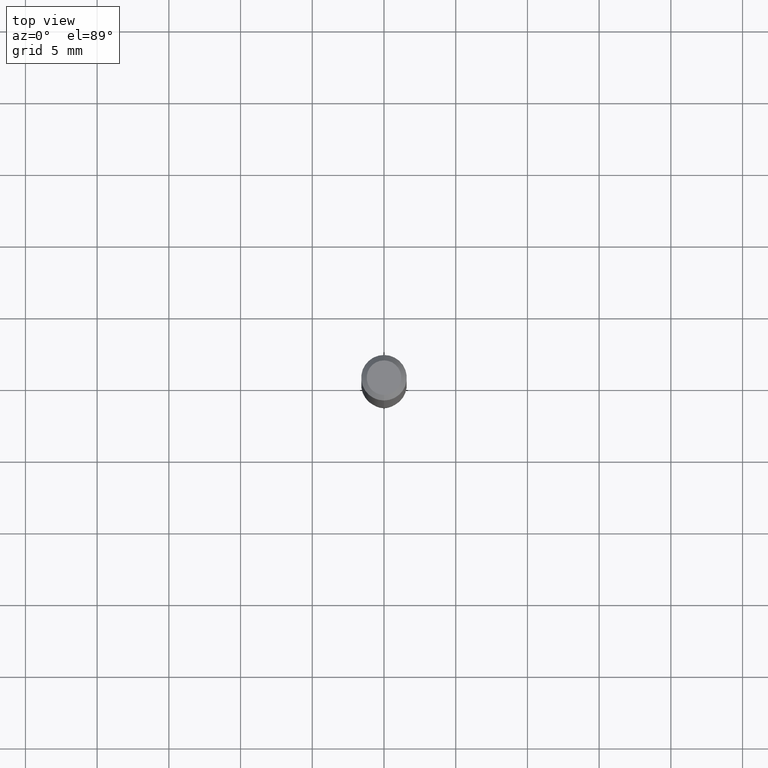
[diagram: clean part render]
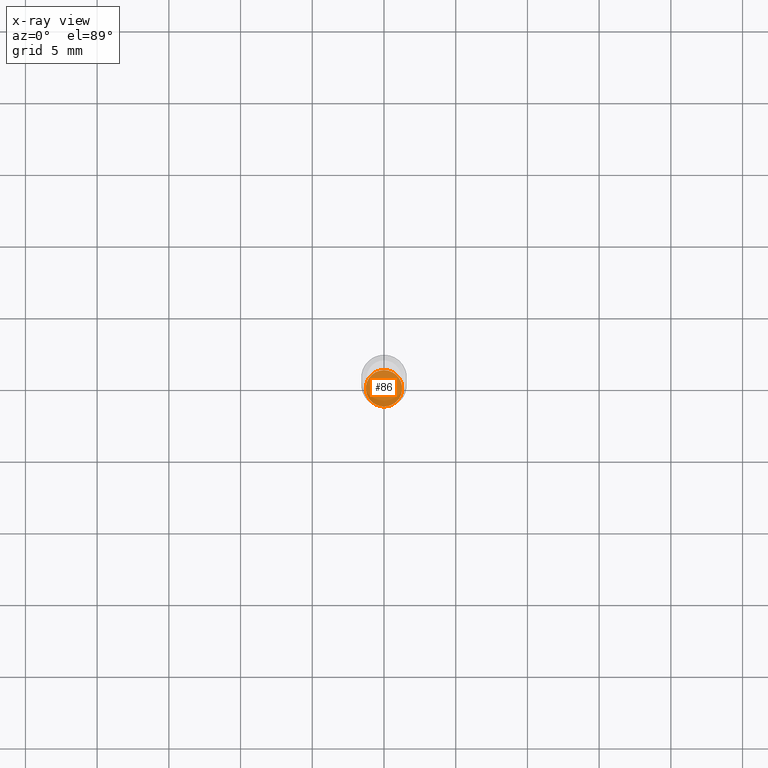
[diagram: x-ray — body ghosted, one internal face saturated and labeled with its STEP entity id]
A machine part, top view, then the same camera in x-ray: the body is ghosted and one INTERNAL B-rep face — a face not visible from any outside direction — is saturated and labeled: STEP entity #86.
In plain terms, the highlighted planar face has unit normal (-0, 0, 1).
Its self-contained STEP definition (entity closure, byte-faithful):
#17 = CIRCLE ( 'NONE', #35, 0.05000000000000000278 ) ;
#35 = AXIS2_PLACEMENT_3D ( 'NONE', #216, #474, #179 ) ;
#43 = AXIS2_PLACEMENT_3D ( 'NONE', #512, #92, #262 ) ;
#60 = CARTESIAN_POINT ( 'NONE',  ( 3.552713678800914786E-16, 0.04999999999999404227, -1.700000000000000178 ) ) ;
#86 = ADVANCED_FACE ( 'NONE', ( #519 ), #471, .F. ) ;
#92 = DIRECTION ( 'NONE',  ( -2.445363965564485877E-29, 3.491631476579074343E-15, 1.000000000000000000 ) ) ;
#97 = DIRECTION ( 'NONE',  ( -6.982962677686265133E-15, -1.000000000000000000, 5.463695987328526437E-15 ) ) ;
#111 = CIRCLE ( 'NONE', #348, 0.05000000000000000278 ) ;
#140 = EDGE_CURVE ( 'NONE', #324, #388, #17, .T. ) ;
#179 = DIRECTION ( 'NONE',  ( -6.982962677686265133E-15, -1.000000000000000000, 5.463695987328526437E-15 ) ) ;
#182 = DIRECTION ( 'NONE',  ( -2.445363965564486438E-29, 3.491631476579074343E-15, 1.000000000000000000 ) ) ;
#201 = CARTESIAN_POINT ( 'NONE',  ( -3.491481338842715752E-16, -0.05000000000000592165, -1.699999999999999734 ) ) ;
#211 = EDGE_CURVE ( 'NONE', #388, #324, #111, .T. ) ;
#216 = CARTESIAN_POINT ( 'NONE',  ( 4.157118741459626720E-29, -5.935773510184426185E-15, -1.699999999999999956 ) ) ;
#262 = DIRECTION ( 'NONE',  ( -6.982962677686265922E-15, -1.000000000000000000, 3.491631476579074343E-15 ) ) ;
#276 = ORIENTED_EDGE ( 'NONE', *, *, #140, .F. ) ;
#324 = VERTEX_POINT ( 'NONE', #60 ) ;
#343 = ORIENTED_EDGE ( 'NONE', *, *, #211, .F. ) ;
#348 = AXIS2_PLACEMENT_3D ( 'NONE', #392, #182, #97 ) ;
#388 = VERTEX_POINT ( 'NONE', #201 ) ;
#392 = CARTESIAN_POINT ( 'NONE',  ( 4.157118741459626720E-29, -5.935773510184426185E-15, -1.699999999999999956 ) ) ;
#418 = EDGE_LOOP ( 'NONE', ( #343, #276 ) ) ;
#471 = PLANE ( 'NONE',  #43 ) ;
#474 = DIRECTION ( 'NONE',  ( -2.445363965564486438E-29, 3.491631476579074343E-15, 1.000000000000000000 ) ) ;
#512 = CARTESIAN_POINT ( 'NONE',  ( 3.491481338843548493E-16, 0.04999999999999407002, -1.700000000000000178 ) ) ;
#519 = FACE_OUTER_BOUND ( 'NONE', #418, .T. ) ;